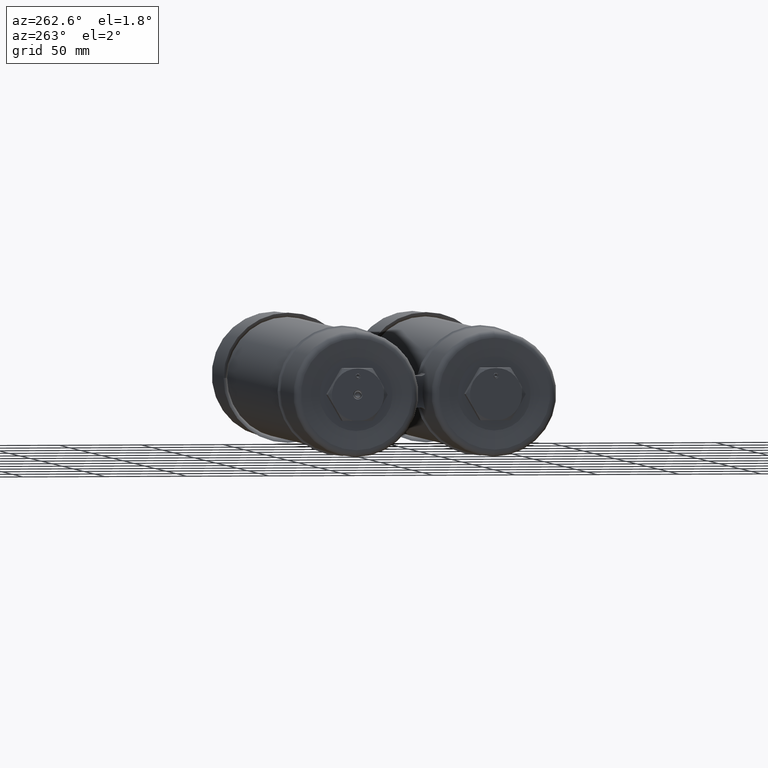
[diagram: clean part render]
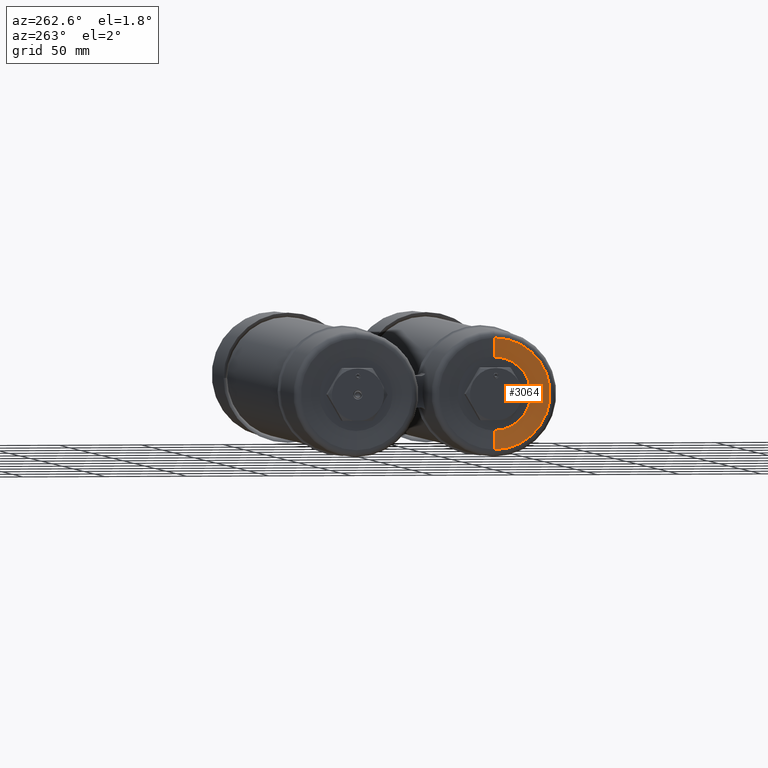
[diagram: same view with one face highlighted and labeled with its STEP entity id]
A machine part, auxiliary view. The second image highlights one B-rep face of the part: STEP entity #3064.
In plain terms, the highlighted conical surface has half-angle 82.262 deg.
Its self-contained STEP definition (entity closure, byte-faithful):
#2242 = DIRECTION ( 'NONE',  ( -1.000000000000000000, 6.121189672418499660E-17, -6.471712124688583364E-16 ) ) ;
#3064 = ADVANCED_FACE ( 'NONE', ( #17339 ), #14581, .F. ) ;
#3188 = ORIENTED_EDGE ( 'NONE', *, *, #15401, .T. ) ;
#3803 = VECTOR ( 'NONE', #24145, 39.37007874015748854 ) ;
#3945 = CARTESIAN_POINT ( 'NONE',  ( -0.1190000000000136504, -1.729799017630390873E-16, -1.331253775764203784 ) ) ;
#4006 = VERTEX_POINT ( 'NONE', #11821 ) ;
#6875 = ORIENTED_EDGE ( 'NONE', *, *, #33831, .F. ) ;
#7543 = VECTOR ( 'NONE', #33736, 39.37007874015748854 ) ;
#7578 = CARTESIAN_POINT ( 'NONE',  ( -0.1189999999999989261, -1.092739197465705287E-15, -6.967533813396959364E-19 ) ) ;
#7808 = CARTESIAN_POINT ( 'NONE',  ( -0.05699999999999885714, -1.452352134849160805E-16, -0.8750000000000000000 ) ) ;
#9949 = AXIS2_PLACEMENT_3D ( 'NONE', #7578, #27587, #30722 ) ;
#11225 = EDGE_CURVE ( 'NONE', #24039, #37437, #27498, .T. ) ;
#11821 = CARTESIAN_POINT ( 'NONE',  ( -0.05699999999999907224, 2.208519825352976723E-16, 0.8750000000000000000 ) ) ;
#12243 = LINE ( 'NONE', #23963, #3803 ) ;
#12483 = CARTESIAN_POINT ( 'NONE',  ( -0.1189999999999982183, -1.729799017630252822E-16, -1.331253775764090319 ) ) ;
#14247 = DIRECTION ( 'NONE',  ( 4.000205990722671141E-16, 2.524022657546259253E-16, 1.000000000000000000 ) ) ;
#14581 = CONICAL_SURFACE ( 'NONE', #30814, 1.331253775764203784, 1.435734332793960899 ) ;
#15401 = EDGE_CURVE ( 'NONE', #37437, #38383, #36234, .T. ) ;
#15877 = DIRECTION ( 'NONE',  ( -1.000000000000000000, 6.121189672418499660E-17, -6.471712124688583364E-16 ) ) ;
#15945 = EDGE_LOOP ( 'NONE', ( #33547, #34116, #3188, #6875 ) ) ;
#17339 = FACE_OUTER_BOUND ( 'NONE', #15945, .T. ) ;
#18870 = DIRECTION ( 'NONE',  ( 3.975917728147737379E-16, 2.524022657546259253E-16, 1.000000000000000000 ) ) ;
#22268 = AXIS2_PLACEMENT_3D ( 'NONE', #38148, #2242, #14247 ) ;
#22885 = CIRCLE ( 'NONE', #22268, 0.8750000000000000000 ) ;
#23963 = CARTESIAN_POINT ( 'NONE',  ( -0.1190000000000125957, 3.360114692972857552E-16, 1.331253775764203784 ) ) ;
#24039 = VERTEX_POINT ( 'NONE', #7808 ) ;
#24145 = DIRECTION ( 'NONE',  ( -0.1346517406867304700, 2.583459231073698873E-16, 0.9908929855085429894 ) ) ;
#27498 = LINE ( 'NONE', #3945, #7543 ) ;
#27587 = DIRECTION ( 'NONE',  ( -1.000000000000000000, 6.121189672418499660E-17, -5.226952353543994727E-16 ) ) ;
#27865 = EDGE_CURVE ( 'NONE', #24039, #4006, #22885, .T. ) ;
#30722 = DIRECTION ( 'NONE',  ( 6.412770529271014255E-17, -1.000000000000000000, -2.524022657546249885E-16 ) ) ;
#30814 = AXIS2_PLACEMENT_3D ( 'NONE', #34723, #15877, #18870 ) ;
#33547 = ORIENTED_EDGE ( 'NONE', *, *, #27865, .F. ) ;
#33736 = DIRECTION ( 'NONE',  ( -0.1346517406867311917, -1.205119539180133243E-16, -0.9908929855085427674 ) ) ;
#33831 = EDGE_CURVE ( 'NONE', #4006, #38383, #12243, .T. ) ;
#34116 = ORIENTED_EDGE ( 'NONE', *, *, #11225, .T. ) ;
#34723 = CARTESIAN_POINT ( 'NONE',  ( -0.1190000000000131231, 0.000000000000000000, -6.967533813469750849E-19 ) ) ;
#36234 = CIRCLE ( 'NONE', #9949, 1.331253775764106084 ) ;
#37437 = VERTEX_POINT ( 'NONE', #12483 ) ;
#38148 = CARTESIAN_POINT ( 'NONE',  ( -0.05699999999999941919, 0.000000000000000000, 3.942786179172893704E-17 ) ) ;
#38297 = CARTESIAN_POINT ( 'NONE',  ( -0.1189999999999996200, 3.360114692972607582E-16, 1.331253775764108305 ) ) ;
#38383 = VERTEX_POINT ( 'NONE', #38297 ) ;